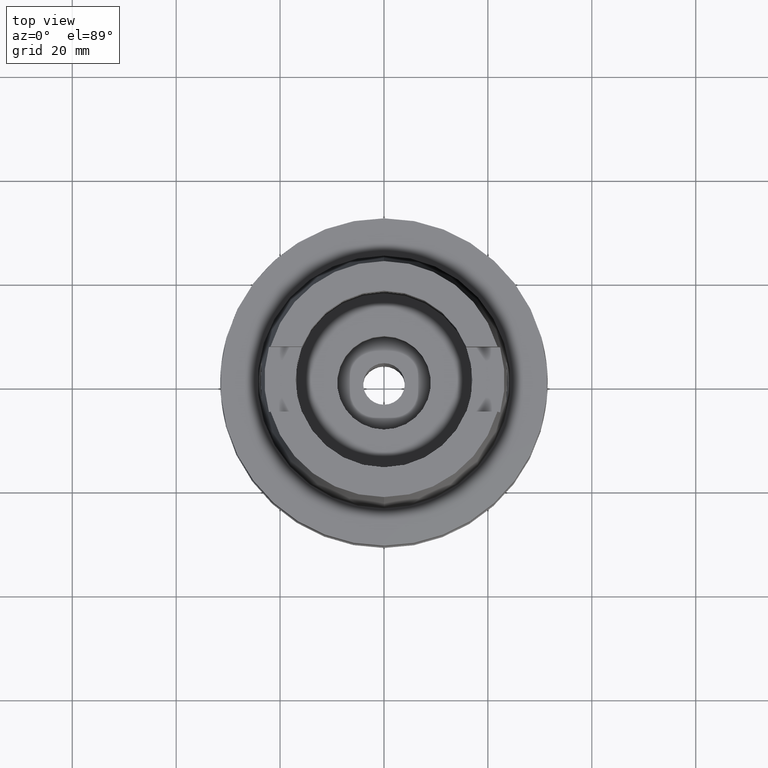
[diagram: clean part render]
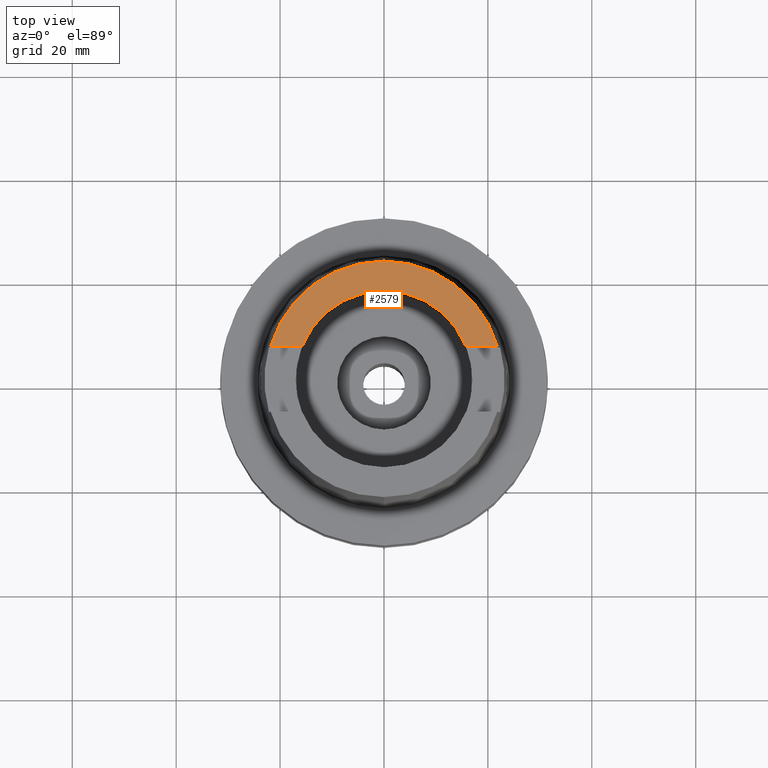
[diagram: same view with one face highlighted and labeled with its STEP entity id]
A machine part, top view. The second image highlights one B-rep face of the part: STEP entity #2579.
In plain terms, the highlighted planar face has unit normal (0, 0, -1).
Its self-contained STEP definition (entity closure, byte-faithful):
#69=DIRECTION('',(1.E0,0.E0,0.E0));
#70=VECTOR('',#69,6.030996740700E0);
#71=CARTESIAN_POINT('',(1.580149043603E1,6.27E0,3.2E1));
#72=LINE('',#71,#70);
#76=DIRECTION('',(-1.E0,0.E0,0.E0));
#77=VECTOR('',#76,6.030996740700E0);
#78=CARTESIAN_POINT('',(-1.580149043603E1,6.27E0,3.2E1));
#79=LINE('',#78,#77);
#83=CARTESIAN_POINT('',(0.E0,1.420590287011E-14,3.2E1));
#84=DIRECTION('',(0.E0,0.E0,-1.E0));
#85=DIRECTION('',(-9.611492277717E-1,2.760292773492E-1,0.E0));
#86=AXIS2_PLACEMENT_3D('',#83,#84,#85);
#91=CARTESIAN_POINT('',(0.E0,1.420590287011E-14,3.2E1));
#92=DIRECTION('',(0.E0,0.E0,-1.E0));
#93=DIRECTION('',(0.E0,1.E0,0.E0));
#94=AXIS2_PLACEMENT_3D('',#91,#92,#93);
#99=CARTESIAN_POINT('',(0.E0,1.683277025428E-14,3.2E1));
#100=DIRECTION('',(0.E0,0.E0,1.E0));
#101=DIRECTION('',(9.294994374136E-1,3.688235294118E-1,0.E0));
#102=AXIS2_PLACEMENT_3D('',#99,#100,#101);
#107=CARTESIAN_POINT('',(0.E0,1.683277025428E-14,3.2E1));
#108=DIRECTION('',(0.E0,0.E0,1.E0));
#109=DIRECTION('',(0.E0,1.E0,0.E0));
#110=AXIS2_PLACEMENT_3D('',#107,#108,#109);
#2169=CARTESIAN_POINT('',(0.E0,1.7E1,3.2E1));
#2170=VERTEX_POINT('',#2169);
#2171=CARTESIAN_POINT('',(1.580149043603E1,6.27E0,3.2E1));
#2172=VERTEX_POINT('',#2171);
#2180=CARTESIAN_POINT('',(2.183248717673E1,6.27E0,3.2E1));
#2181=VERTEX_POINT('',#2180);
#2182=CARTESIAN_POINT('',(-1.580149043603E1,6.27E0,3.2E1));
#2183=CARTESIAN_POINT('',(-2.183248717673E1,6.27E0,3.2E1));
#2184=VERTEX_POINT('',#2182);
#2185=VERTEX_POINT('',#2183);
#2186=CARTESIAN_POINT('',(0.E0,2.271498175923E1,3.2E1));
#2187=VERTEX_POINT('',#2186);
#2562=CARTESIAN_POINT('',(0.E0,1.616533774875E-14,3.2E1));
#2563=DIRECTION('',(0.E0,0.E0,-1.E0));
#2564=DIRECTION('',(0.E0,-1.E0,0.E0));
#2565=AXIS2_PLACEMENT_3D('',#2562,#2563,#2564);
#2566=PLANE('',#2565);
#2568=ORIENTED_EDGE('',*,*,#2567,.T.);
#2570=ORIENTED_EDGE('',*,*,#2569,.T.);
#2572=ORIENTED_EDGE('',*,*,#2571,.T.);
#2573=ORIENTED_EDGE('',*,*,#2554,.F.);
#2574=ORIENTED_EDGE('',*,*,#2510,.T.);
#2576=ORIENTED_EDGE('',*,*,#2575,.T.);
#2577=EDGE_LOOP('',(#2568,#2570,#2572,#2573,#2574,#2576));
#2578=FACE_OUTER_BOUND('',#2577,.F.);
#87=CIRCLE('',#86,2.271498175923E1);
#95=CIRCLE('',#94,2.271498175923E1);
#103=CIRCLE('',#102,1.7E1);
#111=CIRCLE('',#110,1.7E1);
#2510=EDGE_CURVE('',#2172,#2170,#103,.T.);
#2554=EDGE_CURVE('',#2172,#2181,#72,.T.);
#2567=EDGE_CURVE('',#2184,#2185,#79,.T.);
#2569=EDGE_CURVE('',#2185,#2187,#87,.T.);
#2571=EDGE_CURVE('',#2187,#2181,#95,.T.);
#2575=EDGE_CURVE('',#2170,#2184,#111,.T.);
#2579=ADVANCED_FACE('',(#2578),#2566,.F.);